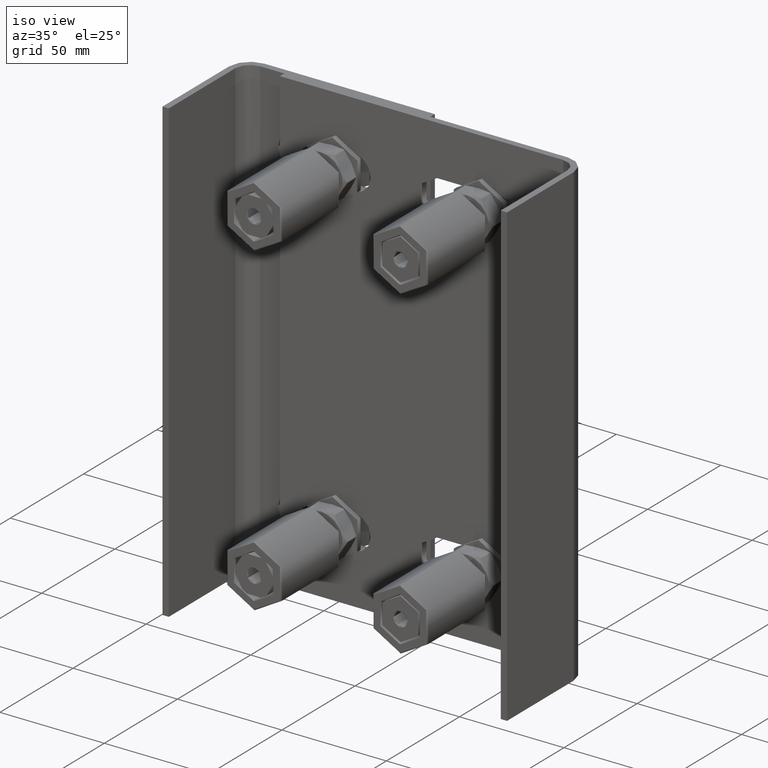
[diagram: clean part render]
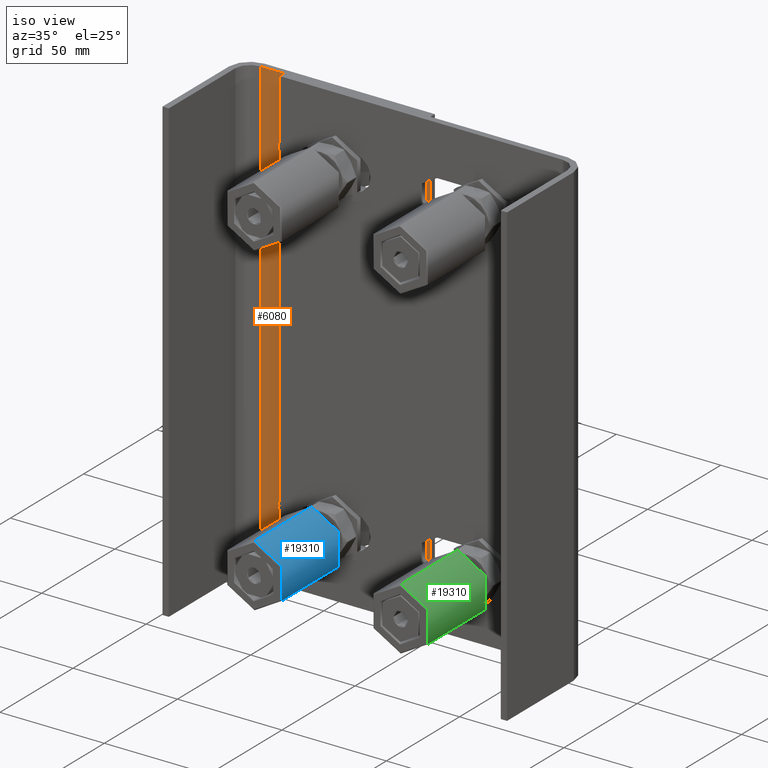
[diagram: same view with three faces highlighted in distinct colors, each labeled with its STEP entity id]
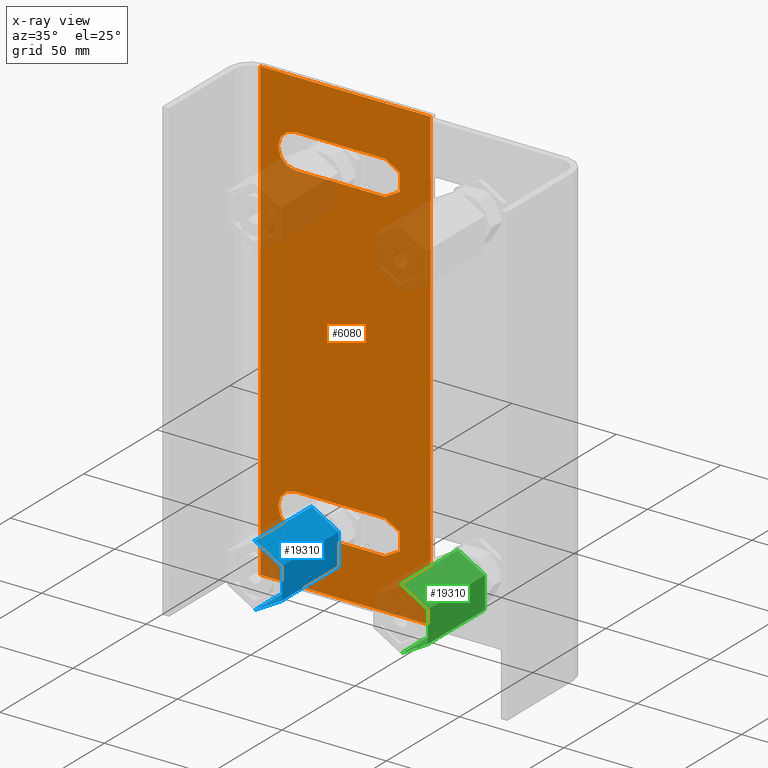
[diagram: x-ray of the same camera — body ghosted, the three highlighted faces saturated]
A machine part, iso view with three faces highlighted in distinct colors.
The next image is the same camera in x-ray (body ghosted, the three faces saturated) — at least one of them is partly hidden behind the body in this view.
Their STEP definitions:

[orange] entity #6080 — the highlighted planar face has unit normal (0, 1, 0).
#238 = VECTOR ( 'NONE', #1830, 1000.000000000000000 ) ;
#350 = LINE ( 'NONE', #20958, #17409 ) ;
#373 = FACE_OUTER_BOUND ( 'NONE', #3944, .T. ) ;
#590 = EDGE_CURVE ( 'NONE', #5953, #19974, #11281, .T. ) ;
#648 = EDGE_CURVE ( 'NONE', #5289, #11925, #4028, .T. ) ;
#682 = DIRECTION ( 'NONE',  ( -1.000000000000000000, 0.000000000000000000, 0.000000000000000000 ) ) ;
#756 = DIRECTION ( 'NONE',  ( 7.583490605363092147E-17, 1.000000000000000000, -0.000000000000000000 ) ) ;
#1088 = CARTESIAN_POINT ( 'NONE',  ( 45.75000000000000000, 52.49999999999998579, -110.0000000000000000 ) ) ;
#1321 = DIRECTION ( 'NONE',  ( 7.583490605363092147E-17, 1.000000000000000000, -0.000000000000000000 ) ) ;
#1615 = ORIENTED_EDGE ( 'NONE', *, *, #14158, .F. ) ;
#1627 = VERTEX_POINT ( 'NONE', #2269 ) ;
#1631 = VERTEX_POINT ( 'NONE', #5809 ) ;
#1795 = CARTESIAN_POINT ( 'NONE',  ( -35.74999999999998579, 52.49999999999999289, -110.0000000000000000 ) ) ;
#1830 = DIRECTION ( 'NONE',  ( 0.000000000000000000, 0.000000000000000000, 1.000000000000000000 ) ) ;
#2269 = CARTESIAN_POINT ( 'NONE',  ( -19.00000000000002487, 52.49999999999999289, -86.00000000000000000 ) ) ;
#2418 = EDGE_CURVE ( 'NONE', #16251, #8696, #4597, .T. ) ;
#2584 = EDGE_CURVE ( 'NONE', #1627, #1631, #3294, .T. ) ;
#2590 = ORIENTED_EDGE ( 'NONE', *, *, #9876, .T. ) ;
#2917 = CARTESIAN_POINT ( 'NONE',  ( -19.00000000000002487, 52.49999999999999289, 69.49999999999997158 ) ) ;
#2954 = FACE_BOUND ( 'NONE', #13401, .T. ) ;
#3184 = AXIS2_PLACEMENT_3D ( 'NONE', #1088, #20776, #11330 ) ;
#3191 = VECTOR ( 'NONE', #8324, 1000.000000000000000 ) ;
#3220 = ORIENTED_EDGE ( 'NONE', *, *, #4011, .T. ) ;
#3294 = CIRCLE ( 'NONE', #3817, 8.250000000000007105 ) ;
#3547 = CARTESIAN_POINT ( 'NONE',  ( -35.74999999999998579, 52.49999999999999289, -110.0000000000000000 ) ) ;
#3635 = AXIS2_PLACEMENT_3D ( 'NONE', #15995, #9260, #9042 ) ;
#3817 = AXIS2_PLACEMENT_3D ( 'NONE', #4470, #14600, #7783 ) ;
#3944 = EDGE_LOOP ( 'NONE', ( #17821, #1615, #4157, #4525 ) ) ;
#4003 = CARTESIAN_POINT ( 'NONE',  ( 45.75000000000000000, 52.49999999999998579, 110.0000000000000000 ) ) ;
#4011 = EDGE_CURVE ( 'NONE', #12355, #1627, #10734, .T. ) ;
#4028 = LINE ( 'NONE', #4137, #17486 ) ;
#4137 = CARTESIAN_POINT ( 'NONE',  ( -19.00000000000002487, 52.49999999999999289, -69.49999999999997158 ) ) ;
#4157 = ORIENTED_EDGE ( 'NONE', *, *, #7642, .F. ) ;
#4251 = CIRCLE ( 'NONE', #16700, 8.250000000000007105 ) ;
#4289 = CARTESIAN_POINT ( 'NONE',  ( -27.25000000000003197, 52.49999999999999289, 77.74999999999998579 ) ) ;
#4316 = CARTESIAN_POINT ( 'NONE',  ( 45.75000000000000000, 52.49999999999998579, 110.0000000000000000 ) ) ;
#4470 = CARTESIAN_POINT ( 'NONE',  ( -19.00000000000002487, 52.49999999999999289, -77.74999999999998579 ) ) ;
#4510 = LINE ( 'NONE', #11951, #10427 ) ;
#4525 = ORIENTED_EDGE ( 'NONE', *, *, #5824, .T. ) ;
#4540 = CARTESIAN_POINT ( 'NONE',  ( 24.00000000000000711, 52.49999999999998579, 86.00000000000000000 ) ) ;
#4597 = LINE ( 'NONE', #4003, #18296 ) ;
#5289 = VERTEX_POINT ( 'NONE', #13076 ) ;
#5449 = DIRECTION ( 'NONE',  ( 1.000000000000000000, 0.000000000000000000, 0.000000000000000000 ) ) ;
#5663 = DIRECTION ( 'NONE',  ( 1.000000000000000000, 0.000000000000000000, 0.000000000000000000 ) ) ;
#5799 = CARTESIAN_POINT ( 'NONE',  ( -19.00000000000002487, 52.49999999999999289, -86.00000000000000000 ) ) ;
#5804 = CARTESIAN_POINT ( 'NONE',  ( -19.00000000000002487, 52.49999999999999289, 77.74999999999998579 ) ) ;
#5809 = CARTESIAN_POINT ( 'NONE',  ( -27.25000000000003197, 52.49999999999999289, -77.74999999999998579 ) ) ;
#5824 = EDGE_CURVE ( 'NONE', #21141, #16251, #4510, .T. ) ;
#5953 = VERTEX_POINT ( 'NONE', #4540 ) ;
#6019 = DIRECTION ( 'NONE',  ( -1.000000000000000000, -0.000000000000000000, -0.000000000000000000 ) ) ;
#6080 = ADVANCED_FACE ( 'NONE', ( #2954, #18217, #373 ), #19602, .F. ) ;
#6749 = CARTESIAN_POINT ( 'NONE',  ( -19.00000000000002487, 52.49999999999999289, 86.00000000000000000 ) ) ;
#7613 = DIRECTION ( 'NONE',  ( 1.000000000000000000, 0.000000000000000000, 0.000000000000000000 ) ) ;
#7642 = EDGE_CURVE ( 'NONE', #21141, #20174, #20023, .T. ) ;
#7783 = DIRECTION ( 'NONE',  ( 1.000000000000000000, 0.000000000000000000, 0.000000000000000000 ) ) ;
#7903 = EDGE_CURVE ( 'NONE', #15107, #10054, #8965, .T. ) ;
#8324 = DIRECTION ( 'NONE',  ( -1.000000000000000000, 7.583490605363090914E-17, 0.000000000000000000 ) ) ;
#8696 = VERTEX_POINT ( 'NONE', #12805 ) ;
#8777 = CARTESIAN_POINT ( 'NONE',  ( 24.00000000000000711, 52.49999999999999289, 77.74999999999998579 ) ) ;
#8778 = CARTESIAN_POINT ( 'NONE',  ( -19.00000000000002487, 52.49999999999999289, -77.74999999999998579 ) ) ;
#8965 = CIRCLE ( 'NONE', #14124, 8.250000000000007105 ) ;
#9042 = DIRECTION ( 'NONE',  ( -1.000000000000000000, 0.000000000000000000, 0.000000000000000000 ) ) ;
#9084 = CARTESIAN_POINT ( 'NONE',  ( 24.00000000000000711, 52.49999999999999289, 69.49999999999997158 ) ) ;
#9132 = ORIENTED_EDGE ( 'NONE', *, *, #590, .T. ) ;
#9260 = DIRECTION ( 'NONE',  ( 7.583490605363092147E-17, 1.000000000000000000, 0.000000000000000000 ) ) ;
#9450 = VECTOR ( 'NONE', #6019, 1000.000000000000000 ) ;
#9578 = CARTESIAN_POINT ( 'NONE',  ( -19.00000000000002487, 52.49999999999999289, 69.49999999999997158 ) ) ;
#9876 = EDGE_CURVE ( 'NONE', #17039, #15107, #12037, .T. ) ;
#10054 = VERTEX_POINT ( 'NONE', #6749 ) ;
#10427 = VECTOR ( 'NONE', #13924, 1000.000000000000000 ) ;
#10468 = VECTOR ( 'NONE', #12197, 1000.000000000000000 ) ;
#10697 = DIRECTION ( 'NONE',  ( -1.000000000000000000, 0.000000000000000000, 0.000000000000000000 ) ) ;
#10734 = LINE ( 'NONE', #5799, #10468 ) ;
#10941 = ORIENTED_EDGE ( 'NONE', *, *, #648, .T. ) ;
#11281 = CIRCLE ( 'NONE', #16577, 8.250000000000007105 ) ;
#11330 = DIRECTION ( 'NONE',  ( -1.000000000000000000, 7.583490605363092147E-17, 0.000000000000000000 ) ) ;
#11347 = ORIENTED_EDGE ( 'NONE', *, *, #17388, .T. ) ;
#11704 = EDGE_CURVE ( 'NONE', #19974, #17039, #16696, .T. ) ;
#11925 = VERTEX_POINT ( 'NONE', #12516 ) ;
#11951 = CARTESIAN_POINT ( 'NONE',  ( 45.75000000000000000, 52.49999999999998579, -110.0000000000000000 ) ) ;
#12037 = CIRCLE ( 'NONE', #3635, 8.250000000000007105 ) ;
#12197 = DIRECTION ( 'NONE',  ( -1.000000000000000000, -0.000000000000000000, -0.000000000000000000 ) ) ;
#12355 = VERTEX_POINT ( 'NONE', #20491 ) ;
#12516 = CARTESIAN_POINT ( 'NONE',  ( 24.00000000000000711, 52.49999999999998579, -69.49999999999997158 ) ) ;
#12799 = AXIS2_PLACEMENT_3D ( 'NONE', #8778, #756, #5663 ) ;
#12805 = CARTESIAN_POINT ( 'NONE',  ( -35.74999999999998579, 52.49999999999999289, 110.0000000000000000 ) ) ;
#12970 = ORIENTED_EDGE ( 'NONE', *, *, #11704, .T. ) ;
#13076 = CARTESIAN_POINT ( 'NONE',  ( -19.00000000000002487, 52.49999999999999289, -69.49999999999997158 ) ) ;
#13221 = ORIENTED_EDGE ( 'NONE', *, *, #2584, .T. ) ;
#13401 = EDGE_LOOP ( 'NONE', ( #3220, #13221, #15442, #10941, #11347 ) ) ;
#13924 = DIRECTION ( 'NONE',  ( 0.000000000000000000, 0.000000000000000000, 1.000000000000000000 ) ) ;
#14016 = EDGE_CURVE ( 'NONE', #10054, #5953, #350, .T. ) ;
#14124 = AXIS2_PLACEMENT_3D ( 'NONE', #5804, #20668, #10697 ) ;
#14158 = EDGE_CURVE ( 'NONE', #20174, #8696, #16528, .T. ) ;
#14481 = DIRECTION ( 'NONE',  ( 1.000000000000000000, 0.000000000000000000, 0.000000000000000000 ) ) ;
#14600 = DIRECTION ( 'NONE',  ( 7.583490605363092147E-17, 1.000000000000000000, -0.000000000000000000 ) ) ;
#14918 = EDGE_CURVE ( 'NONE', #1631, #5289, #19074, .T. ) ;
#15107 = VERTEX_POINT ( 'NONE', #4289 ) ;
#15433 = DIRECTION ( 'NONE',  ( 7.583490605363092147E-17, 1.000000000000000000, 0.000000000000000000 ) ) ;
#15442 = ORIENTED_EDGE ( 'NONE', *, *, #14918, .T. ) ;
#15755 = ORIENTED_EDGE ( 'NONE', *, *, #7903, .T. ) ;
#15923 = CARTESIAN_POINT ( 'NONE',  ( 45.75000000000000000, 52.49999999999998579, -110.0000000000000000 ) ) ;
#15995 = CARTESIAN_POINT ( 'NONE',  ( -19.00000000000002487, 52.49999999999999289, 77.74999999999998579 ) ) ;
#16251 = VERTEX_POINT ( 'NONE', #4316 ) ;
#16528 = LINE ( 'NONE', #3547, #238 ) ;
#16577 = AXIS2_PLACEMENT_3D ( 'NONE', #8777, #15433, #682 ) ;
#16696 = LINE ( 'NONE', #2917, #9450 ) ;
#16700 = AXIS2_PLACEMENT_3D ( 'NONE', #17782, #1321, #14481 ) ;
#16866 = ORIENTED_EDGE ( 'NONE', *, *, #14016, .T. ) ;
#17039 = VERTEX_POINT ( 'NONE', #9578 ) ;
#17236 = DIRECTION ( 'NONE',  ( -1.000000000000000000, 7.583490605363090914E-17, 0.000000000000000000 ) ) ;
#17388 = EDGE_CURVE ( 'NONE', #11925, #12355, #4251, .T. ) ;
#17409 = VECTOR ( 'NONE', #7613, 1000.000000000000000 ) ;
#17486 = VECTOR ( 'NONE', #5449, 1000.000000000000000 ) ;
#17782 = CARTESIAN_POINT ( 'NONE',  ( 24.00000000000000711, 52.49999999999999289, -77.74999999999998579 ) ) ;
#17821 = ORIENTED_EDGE ( 'NONE', *, *, #2418, .T. ) ;
#18217 = FACE_BOUND ( 'NONE', #20497, .T. ) ;
#18296 = VECTOR ( 'NONE', #17236, 1000.000000000000000 ) ;
#19074 = CIRCLE ( 'NONE', #12799, 8.250000000000007105 ) ;
#19531 = CARTESIAN_POINT ( 'NONE',  ( 45.75000000000000000, 52.49999999999998579, -110.0000000000000000 ) ) ;
#19602 = PLANE ( 'NONE',  #3184 ) ;
#19974 = VERTEX_POINT ( 'NONE', #9084 ) ;
#20023 = LINE ( 'NONE', #19531, #3191 ) ;
#20174 = VERTEX_POINT ( 'NONE', #1795 ) ;
#20491 = CARTESIAN_POINT ( 'NONE',  ( 24.00000000000000711, 52.49999999999999289, -86.00000000000000000 ) ) ;
#20497 = EDGE_LOOP ( 'NONE', ( #12970, #2590, #15755, #16866, #9132 ) ) ;
#20668 = DIRECTION ( 'NONE',  ( 7.583490605363092147E-17, 1.000000000000000000, 0.000000000000000000 ) ) ;
#20776 = DIRECTION ( 'NONE',  ( 7.583490605363092147E-17, 1.000000000000000000, -0.000000000000000000 ) ) ;
#20958 = CARTESIAN_POINT ( 'NONE',  ( -19.00000000000002487, 52.49999999999999289, 86.00000000000000000 ) ) ;
#21141 = VERTEX_POINT ( 'NONE', #15923 ) ;

[blue] entity #19310 — the highlighted cylindrical surface (partial cylindrical patch) has radius 15 mm, axis along (0, 1, 0).
#8 = ORIENTED_EDGE ( 'NONE', *, *, #10403, .T. ) ;
#121 = CARTESIAN_POINT ( 'NONE',  ( 1.836970198721029589E-15, 19.49999999999999289, -15.00000000000000000 ) ) ;
#1037 = CARTESIAN_POINT ( 'NONE',  ( 0.000000000000000000, -19.49999999999997868, 15.00000000000000000 ) ) ;
#1326 = DIRECTION ( 'NONE',  ( 0.000000000000000000, 0.000000000000000000, 1.000000000000000000 ) ) ;
#2124 = AXIS2_PLACEMENT_3D ( 'NONE', #19731, #8071, #13125 ) ;
#2306 = DIRECTION ( 'NONE',  ( 0.000000000000000000, 0.000000000000000000, -1.000000000000000000 ) ) ;
#3241 = CYLINDRICAL_SURFACE ( 'NONE', #5475, 15.00000000000000000 ) ;
#4493 = CARTESIAN_POINT ( 'NONE',  ( 0.000000000000000000, 20.00000000000000711, 0.000000000000000000 ) ) ;
#4805 = EDGE_CURVE ( 'NONE', #8278, #6528, #20333, .T. ) ;
#5316 = VECTOR ( 'NONE', #13066, 1000.000000000000000 ) ;
#5475 = AXIS2_PLACEMENT_3D ( 'NONE', #4493, #16064, #1326 ) ;
#5504 = EDGE_LOOP ( 'NONE', ( #7228, #11225, #8, #17572 ) ) ;
#5554 = DIRECTION ( 'NONE',  ( -0.000000000000000000, 1.000000000000000000, -0.000000000000000000 ) ) ;
#6528 = VERTEX_POINT ( 'NONE', #121 ) ;
#7228 = ORIENTED_EDGE ( 'NONE', *, *, #11151, .T. ) ;
#7429 = CARTESIAN_POINT ( 'NONE',  ( 0.000000000000000000, 19.49999999999999289, 0.000000000000000000 ) ) ;
#8071 = DIRECTION ( 'NONE',  ( -0.000000000000000000, 1.000000000000000000, -0.000000000000000000 ) ) ;
#8166 = CARTESIAN_POINT ( 'NONE',  ( 0.000000000000000000, 20.00000000000000711, 15.00000000000000000 ) ) ;
#8278 = VERTEX_POINT ( 'NONE', #13435 ) ;
#8879 = DIRECTION ( 'NONE',  ( 0.000000000000000000, -1.000000000000000000, 0.000000000000000000 ) ) ;
#10221 = LINE ( 'NONE', #8166, #5316 ) ;
#10403 = EDGE_CURVE ( 'NONE', #6528, #19661, #14122, .T. ) ;
#10660 = EDGE_CURVE ( 'NONE', #21274, #19661, #10221, .T. ) ;
#11151 = EDGE_CURVE ( 'NONE', #21274, #8278, #15673, .T. ) ;
#11225 = ORIENTED_EDGE ( 'NONE', *, *, #4805, .T. ) ;
#11989 = FACE_OUTER_BOUND ( 'NONE', #5504, .T. ) ;
#13066 = DIRECTION ( 'NONE',  ( -0.000000000000000000, 1.000000000000000000, -0.000000000000000000 ) ) ;
#13125 = DIRECTION ( 'NONE',  ( 0.000000000000000000, 0.000000000000000000, 1.000000000000000000 ) ) ;
#13435 = CARTESIAN_POINT ( 'NONE',  ( 1.836970198721029589E-15, -19.49999999999997868, -15.00000000000000000 ) ) ;
#14122 = CIRCLE ( 'NONE', #16539, 15.00000000000000000 ) ;
#15673 = CIRCLE ( 'NONE', #2124, 15.00000000000000000 ) ;
#16064 = DIRECTION ( 'NONE',  ( -0.000000000000000000, 1.000000000000000000, -0.000000000000000000 ) ) ;
#16539 = AXIS2_PLACEMENT_3D ( 'NONE', #7429, #8879, #2306 ) ;
#17572 = ORIENTED_EDGE ( 'NONE', *, *, #10660, .F. ) ;
#18429 = CARTESIAN_POINT ( 'NONE',  ( 0.000000000000000000, 19.49999999999999289, 15.00000000000000000 ) ) ;
#19310 = ADVANCED_FACE ( 'NONE', ( #11989 ), #3241, .T. ) ;
#19661 = VERTEX_POINT ( 'NONE', #18429 ) ;
#19731 = CARTESIAN_POINT ( 'NONE',  ( 0.000000000000000000, -19.49999999999997868, 0.000000000000000000 ) ) ;
#20122 = CARTESIAN_POINT ( 'NONE',  ( 1.836970198721029589E-15, 20.00000000000000711, -15.00000000000000000 ) ) ;
#20333 = LINE ( 'NONE', #20122, #20604 ) ;
#20604 = VECTOR ( 'NONE', #5554, 1000.000000000000000 ) ;
#21274 = VERTEX_POINT ( 'NONE', #1037 ) ;

[green] entity #19310 — the highlighted cylindrical surface (partial cylindrical patch) has radius 15 mm, axis along (0, 1, 0).
#8 = ORIENTED_EDGE ( 'NONE', *, *, #10403, .T. ) ;
#121 = CARTESIAN_POINT ( 'NONE',  ( 1.836970198721029589E-15, 19.49999999999999289, -15.00000000000000000 ) ) ;
#1037 = CARTESIAN_POINT ( 'NONE',  ( 0.000000000000000000, -19.49999999999997868, 15.00000000000000000 ) ) ;
#1326 = DIRECTION ( 'NONE',  ( 0.000000000000000000, 0.000000000000000000, 1.000000000000000000 ) ) ;
#2124 = AXIS2_PLACEMENT_3D ( 'NONE', #19731, #8071, #13125 ) ;
#2306 = DIRECTION ( 'NONE',  ( 0.000000000000000000, 0.000000000000000000, -1.000000000000000000 ) ) ;
#3241 = CYLINDRICAL_SURFACE ( 'NONE', #5475, 15.00000000000000000 ) ;
#4493 = CARTESIAN_POINT ( 'NONE',  ( 0.000000000000000000, 20.00000000000000711, 0.000000000000000000 ) ) ;
#4805 = EDGE_CURVE ( 'NONE', #8278, #6528, #20333, .T. ) ;
#5316 = VECTOR ( 'NONE', #13066, 1000.000000000000000 ) ;
#5475 = AXIS2_PLACEMENT_3D ( 'NONE', #4493, #16064, #1326 ) ;
#5504 = EDGE_LOOP ( 'NONE', ( #7228, #11225, #8, #17572 ) ) ;
#5554 = DIRECTION ( 'NONE',  ( -0.000000000000000000, 1.000000000000000000, -0.000000000000000000 ) ) ;
#6528 = VERTEX_POINT ( 'NONE', #121 ) ;
#7228 = ORIENTED_EDGE ( 'NONE', *, *, #11151, .T. ) ;
#7429 = CARTESIAN_POINT ( 'NONE',  ( 0.000000000000000000, 19.49999999999999289, 0.000000000000000000 ) ) ;
#8071 = DIRECTION ( 'NONE',  ( -0.000000000000000000, 1.000000000000000000, -0.000000000000000000 ) ) ;
#8166 = CARTESIAN_POINT ( 'NONE',  ( 0.000000000000000000, 20.00000000000000711, 15.00000000000000000 ) ) ;
#8278 = VERTEX_POINT ( 'NONE', #13435 ) ;
#8879 = DIRECTION ( 'NONE',  ( 0.000000000000000000, -1.000000000000000000, 0.000000000000000000 ) ) ;
#10221 = LINE ( 'NONE', #8166, #5316 ) ;
#10403 = EDGE_CURVE ( 'NONE', #6528, #19661, #14122, .T. ) ;
#10660 = EDGE_CURVE ( 'NONE', #21274, #19661, #10221, .T. ) ;
#11151 = EDGE_CURVE ( 'NONE', #21274, #8278, #15673, .T. ) ;
#11225 = ORIENTED_EDGE ( 'NONE', *, *, #4805, .T. ) ;
#11989 = FACE_OUTER_BOUND ( 'NONE', #5504, .T. ) ;
#13066 = DIRECTION ( 'NONE',  ( -0.000000000000000000, 1.000000000000000000, -0.000000000000000000 ) ) ;
#13125 = DIRECTION ( 'NONE',  ( 0.000000000000000000, 0.000000000000000000, 1.000000000000000000 ) ) ;
#13435 = CARTESIAN_POINT ( 'NONE',  ( 1.836970198721029589E-15, -19.49999999999997868, -15.00000000000000000 ) ) ;
#14122 = CIRCLE ( 'NONE', #16539, 15.00000000000000000 ) ;
#15673 = CIRCLE ( 'NONE', #2124, 15.00000000000000000 ) ;
#16064 = DIRECTION ( 'NONE',  ( -0.000000000000000000, 1.000000000000000000, -0.000000000000000000 ) ) ;
#16539 = AXIS2_PLACEMENT_3D ( 'NONE', #7429, #8879, #2306 ) ;
#17572 = ORIENTED_EDGE ( 'NONE', *, *, #10660, .F. ) ;
#18429 = CARTESIAN_POINT ( 'NONE',  ( 0.000000000000000000, 19.49999999999999289, 15.00000000000000000 ) ) ;
#19310 = ADVANCED_FACE ( 'NONE', ( #11989 ), #3241, .T. ) ;
#19661 = VERTEX_POINT ( 'NONE', #18429 ) ;
#19731 = CARTESIAN_POINT ( 'NONE',  ( 0.000000000000000000, -19.49999999999997868, 0.000000000000000000 ) ) ;
#20122 = CARTESIAN_POINT ( 'NONE',  ( 1.836970198721029589E-15, 20.00000000000000711, -15.00000000000000000 ) ) ;
#20333 = LINE ( 'NONE', #20122, #20604 ) ;
#20604 = VECTOR ( 'NONE', #5554, 1000.000000000000000 ) ;
#21274 = VERTEX_POINT ( 'NONE', #1037 ) ;